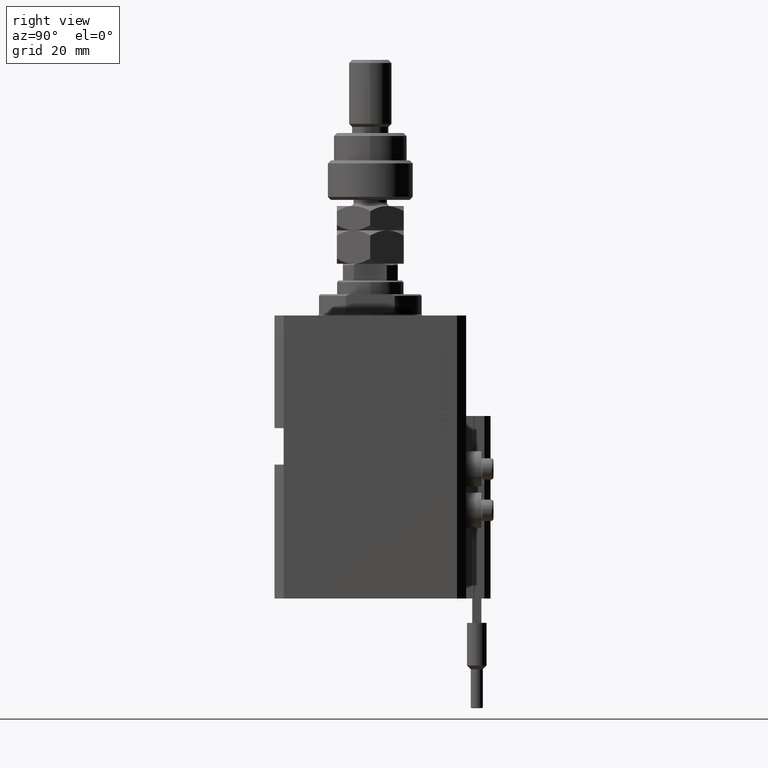
[diagram: clean part render]
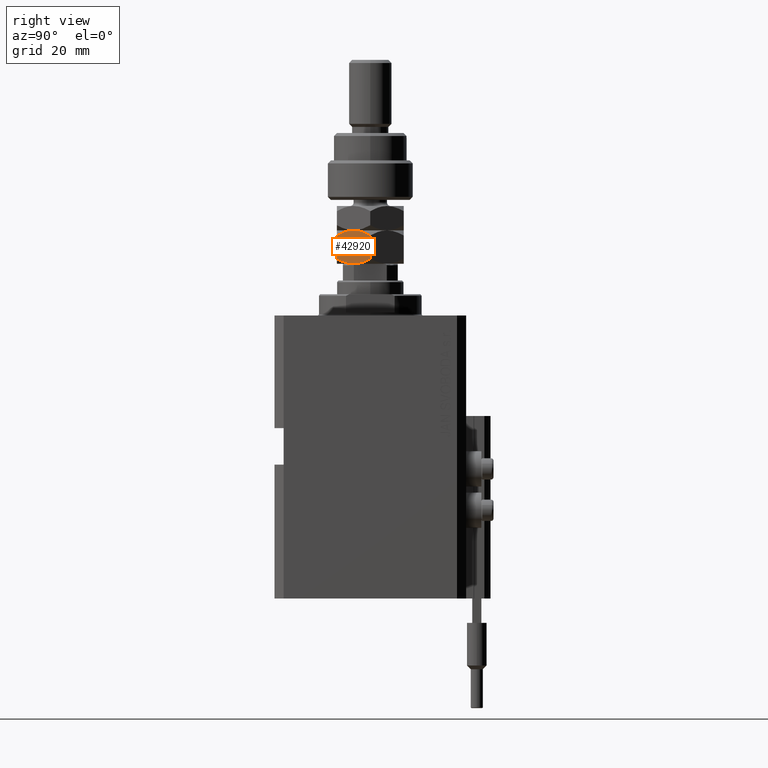
[diagram: same view with one face highlighted and labeled with its STEP entity id]
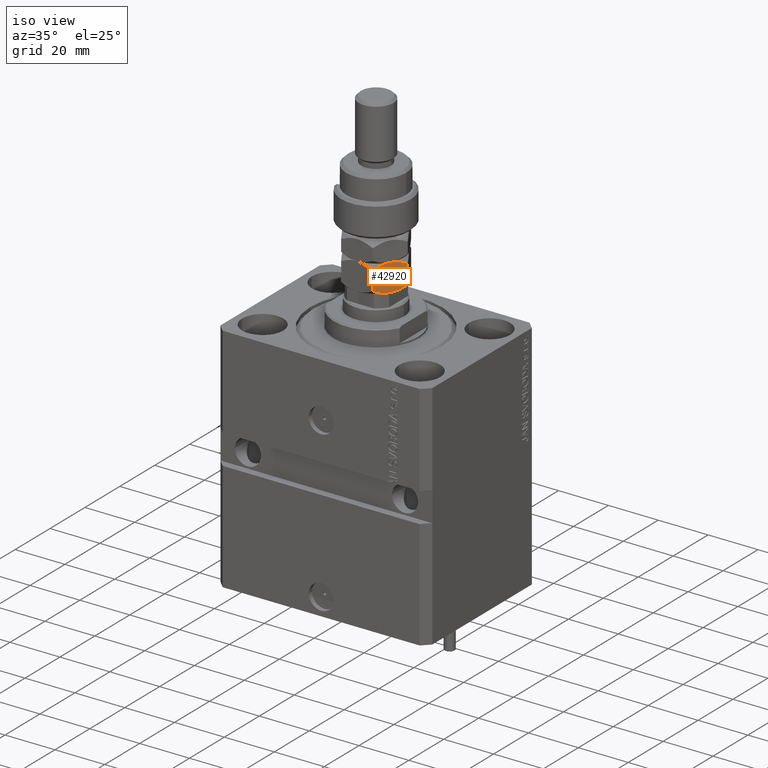
[diagram: same view with one face highlighted and labeled with its STEP entity id]
A machine part, right view. The second image highlights one B-rep face of the part: STEP entity #42920.
A second angle (iso view) of the same face is appended — the face is thin or edge-on in the first view.
In plain terms, the highlighted planar face has unit normal (-0.866, 0.5, 0).
Its self-contained STEP definition (entity closure, byte-faithful):
#69 = CARTESIAN_POINT ( 'NONE',  ( 10.99999999999999822, 0.5501206218979356466, 0.01029861699449337656 ) ) ;
#1605 = CARTESIAN_POINT ( 'NONE',  ( 10.99999999999999822, 5.363576505757325918, 9.791932305492514033 ) ) ;
#1649 = CARTESIAN_POINT ( 'NONE',  ( 10.99999999999999822, -4.323029509133800907, 10.19034626474623551 ) ) ;
#2023 = B_SPLINE_CURVE_WITH_KNOTS ( 'NONE', 3,
 ( #18223, #33994, #17714, #33495, #42028, #6566, #22365, #11708 ),
 .UNSPECIFIED., .F., .F.,
 ( 4, 2, 2, 4 ),
 ( 0.02548310755563731184, 0.02714502201312677179, 0.02880693647061623175, 0.03213076538559515166 ),
 .UNSPECIFIED. ) ;
#2174 = CARTESIAN_POINT ( 'NONE',  ( 10.99999999999999822, -2.205563362884370271, 10.79423439979603039 ) ) ;
#4223 = CARTESIAN_POINT ( 'NONE',  ( 11.00000000000000000, 6.350852961085883486, 1.701705922171761198 ) ) ;
#5708 = VERTEX_POINT ( 'NONE', #21690 ) ;
#6566 = CARTESIAN_POINT ( 'NONE',  ( 11.00000000000000178, -4.344649988696088094, 0.7819333922108973045 ) ) ;
#7167 = VERTEX_POINT ( 'NONE', #45760 ) ;
#8106 = ORIENTED_EDGE ( 'NONE', *, *, #8835, .F. ) ;
#8195 = DIRECTION ( 'NONE',  ( -0.000000000000000000, -0.000000000000000000, -1.000000000000000000 ) ) ;
#8835 = EDGE_CURVE ( 'NONE', #7167, #5708, #2023, .T. ) ;
#8897 = DIRECTION ( 'NONE',  ( 0.000000000000000000, 0.000000000000000000, 1.000000000000000000 ) ) ;
#10843 = EDGE_CURVE ( 'NONE', #32779, #43197, #28921, .T. ) ;
#11708 = CARTESIAN_POINT ( 'NONE',  ( 11.00000000000000000, -6.350852961085885262, 1.701705922171761864 ) ) ;
#11998 = CARTESIAN_POINT ( 'NONE',  ( 11.00000000000000000, 2.205563362884370715, 0.2057656002039678633 ) ) ;
#12059 = ORIENTED_EDGE ( 'NONE', *, *, #10843, .F. ) ;
#12310 = EDGE_CURVE ( 'NONE', #43197, #7167, #17789, .T. ) ;
#12497 = CARTESIAN_POINT ( 'NONE',  ( 11.00000000000000000, 1.102880524211967916, 0.05171427369706949051 ) ) ;
#12757 = B_SPLINE_CURVE_WITH_KNOTS ( 'NONE', 3,
 ( #37073, #48715, #24913, #40190, #16382, #32162, #1605, #47948 ),
 .UNSPECIFIED., .F., .F.,
 ( 4, 2, 2, 4 ),
 ( 0.02548310755563731531, 0.02714502201312677526, 0.02880693647061623522, 0.03213076538559515860 ),
 .UNSPECIFIED. ) ;
#14088 = CARTESIAN_POINT ( 'NONE',  ( 11.00000000000000000, -0.2746235576716405391, 11.00000000000000355 ) ) ;
#15382 = CARTESIAN_POINT ( 'NONE',  ( 11.00000000000000000, 5.349315167928744508, 1.222704691498689877 ) ) ;
#15717 = CARTESIAN_POINT ( 'NONE',  ( 11.00000000000000000, -6.350852961085885262, 11.00000000000000000 ) ) ;
#16382 = CARTESIAN_POINT ( 'NONE',  ( 11.00000000000000000, 2.731989201781026555, 10.67753305448841772 ) ) ;
#17015 = CARTESIAN_POINT ( 'NONE',  ( 11.00000000000000000, 6.350852961085883486, 11.00000000000000000 ) ) ;
#17453 = CARTESIAN_POINT ( 'NONE',  ( 11.00000000000000178, -0.5501206218979368678, 10.98970138300551191 ) ) ;
#17714 = CARTESIAN_POINT ( 'NONE',  ( 11.00000000000000178, -1.099784029505286975, 0.04170177774201815762 ) ) ;
#17789 = B_SPLINE_CURVE_WITH_KNOTS ( 'NONE', 3,
 ( #4223, #35548, #15382, #23908, #39686, #43063, #11998, #47712, #12497, #69, #47202, #44058 ),
 .UNSPECIFIED., .F., .F.,
 ( 4, 2, 2, 2, 2, 4 ),
 ( 0.01886453216956117396, 0.02051917601608021016, 0.02217381986259924290, 0.02382846370911827910, 0.02465578563237779547, 0.02548310755563731184 ),
 .UNSPECIFIED. ) ;
#17964 = FACE_OUTER_BOUND ( 'NONE', #20778, .T. ) ;
#18223 = CARTESIAN_POINT ( 'NONE',  ( 11.00000000000000000, 0.000000000000000000, 0.000000000000000000 ) ) ;
#18912 = CARTESIAN_POINT ( 'NONE',  ( 11.00000000000000000, 6.350852961085883486, 1.701705922171761198 ) ) ;
#20308 = CARTESIAN_POINT ( 'NONE',  ( 11.00000000000000000, 6.350852961085883486, 9.298294077828240134 ) ) ;
#20778 = EDGE_LOOP ( 'NONE', ( #42730, #12059, #31135, #22123, #47317, #8106 ) ) ;
#21690 = CARTESIAN_POINT ( 'NONE',  ( 11.00000000000000000, -6.350852961085885262, 1.701705922171761864 ) ) ;
#22123 = ORIENTED_EDGE ( 'NONE', *, *, #30625, .F. ) ;
#22365 = CARTESIAN_POINT ( 'NONE',  ( 11.00000000000000000, -5.363576505757326807, 1.208067694507484413 ) ) ;
#22372 = CARTESIAN_POINT ( 'NONE',  ( 11.00000000000000000, -1.102880524211969027, 10.94828572630293273 ) ) ;
#22628 = CARTESIAN_POINT ( 'NONE',  ( 11.00000000000000000, -3.802713407336412832, 10.37230892346509847 ) ) ;
#23908 = CARTESIAN_POINT ( 'NONE',  ( 10.99999999999999822, 4.323029509133802684, 0.8096537352537666044 ) ) ;
#24347 = VERTEX_POINT ( 'NONE', #46276 ) ;
#24913 = CARTESIAN_POINT ( 'NONE',  ( 11.00000000000000178, 1.099784029505284533, 10.95829822225798189 ) ) ;
#24914 = VECTOR ( 'NONE', #40310, 1000.000000000000000 ) ;
#25484 = CARTESIAN_POINT ( 'NONE',  ( 10.99999999999999467, 0.000000000000000000, 11.00000000000000000 ) ) ;
#25729 = PLANE ( 'NONE',  #49281 ) ;
#28921 = LINE ( 'NONE', #17015, #24914 ) ;
#29791 = CARTESIAN_POINT ( 'NONE',  ( 11.00000000000000000, -6.350852961085885262, 9.298294077828238358 ) ) ;
#30625 = EDGE_CURVE ( 'NONE', #45669, #24347, #50877, .T. ) ;
#31135 = ORIENTED_EDGE ( 'NONE', *, *, #37441, .F. ) ;
#31494 = LINE ( 'NONE', #15717, #37029 ) ;
#32162 = CARTESIAN_POINT ( 'NONE',  ( 11.00000000000000178, 4.344649988696087206, 10.21806660778910114 ) ) ;
#32779 = VERTEX_POINT ( 'NONE', #20308 ) ;
#33495 = CARTESIAN_POINT ( 'NONE',  ( 10.99999999999999645, -2.189438957741031366, 0.2028253662507153998 ) ) ;
#33501 = CARTESIAN_POINT ( 'NONE',  ( 11.00000000000000178, -5.349315167928747172, 9.777295308501312121 ) ) ;
#33754 = CARTESIAN_POINT ( 'NONE',  ( 10.99999999999999822, -5.856287164594791150, 9.545576976073807174 ) ) ;
#33994 = CARTESIAN_POINT ( 'NONE',  ( 10.99999999999999822, -0.5516605423237674888, 3.811648262644349985E-18 ) ) ;
#34258 = CARTESIAN_POINT ( 'NONE',  ( 11.00000000000000000, -6.350852961085885262, 9.298294077828238358 ) ) ;
#35548 = CARTESIAN_POINT ( 'NONE',  ( 11.00000000000000178, 5.856287164594785821, 1.454423023926191938 ) ) ;
#37029 = VECTOR ( 'NONE', #8195, 1000.000000000000000 ) ;
#37073 = CARTESIAN_POINT ( 'NONE',  ( 10.99999999999999467, 0.000000000000000000, 11.00000000000000000 ) ) ;
#37374 = CARTESIAN_POINT ( 'NONE',  ( 11.00000000000000355, -2.743986917173864892, 10.67427553246086447 ) ) ;
#37441 = EDGE_CURVE ( 'NONE', #24347, #32779, #12757, .T. ) ;
#37623 = CARTESIAN_POINT ( 'NONE',  ( 11.00000000000000000, -6.350852961085885262, 11.00000000000000000 ) ) ;
#39686 = CARTESIAN_POINT ( 'NONE',  ( 11.00000000000000000, 3.802713407336413276, 0.6276910765349043020 ) ) ;
#40190 = CARTESIAN_POINT ( 'NONE',  ( 10.99999999999999822, 2.189438957741029590, 10.79717463374928421 ) ) ;
#40310 = DIRECTION ( 'NONE',  ( -0.000000000000000000, -0.000000000000000000, -1.000000000000000000 ) ) ;
#41504 = DIRECTION ( 'NONE',  ( -1.000000000000000000, 0.000000000000000000, 0.000000000000000000 ) ) ;
#42028 = CARTESIAN_POINT ( 'NONE',  ( 11.00000000000000000, -2.731989201781026111, 0.3224669455115847794 ) ) ;
#42730 = ORIENTED_EDGE ( 'NONE', *, *, #12310, .F. ) ;
#42920 = ADVANCED_FACE ( 'NONE', ( #17964 ), #25729, .F. ) ;
#43063 = CARTESIAN_POINT ( 'NONE',  ( 11.00000000000000000, 2.743986917173864448, 0.3257244675391384736 ) ) ;
#43197 = VERTEX_POINT ( 'NONE', #18912 ) ;
#44058 = CARTESIAN_POINT ( 'NONE',  ( 11.00000000000000000, 0.000000000000000000, 0.000000000000000000 ) ) ;
#45398 = CARTESIAN_POINT ( 'NONE',  ( 11.00000000000000178, -1.381217716854154398, 10.91695300848610017 ) ) ;
#45669 = VERTEX_POINT ( 'NONE', #29791 ) ;
#45760 = CARTESIAN_POINT ( 'NONE',  ( 11.00000000000000000, 0.000000000000000000, 0.000000000000000000 ) ) ;
#46276 = CARTESIAN_POINT ( 'NONE',  ( 10.99999999999999467, 0.000000000000000000, 11.00000000000000000 ) ) ;
#47202 = CARTESIAN_POINT ( 'NONE',  ( 10.99999999999999822, 0.2746235576716393179, 8.470329472542994146E-18 ) ) ;
#47317 = ORIENTED_EDGE ( 'NONE', *, *, #50320, .T. ) ;
#47712 = CARTESIAN_POINT ( 'NONE',  ( 11.00000000000000178, 1.381217716854154398, 0.08304699151390024237 ) ) ;
#47948 = CARTESIAN_POINT ( 'NONE',  ( 11.00000000000000000, 6.350852961085883486, 9.298294077828240134 ) ) ;
#48715 = CARTESIAN_POINT ( 'NONE',  ( 11.00000000000000178, 0.5516605423237666006, 11.00000000000000355 ) ) ;
#49281 = AXIS2_PLACEMENT_3D ( 'NONE', #37623, #41504, #8897 ) ;
#50320 = EDGE_CURVE ( 'NONE', #45669, #5708, #31494, .T. ) ;
#50877 = B_SPLINE_CURVE_WITH_KNOTS ( 'NONE', 3,
 ( #34258, #33754, #33501, #1649, #22628, #37374, #2174, #45398, #22372, #17453, #14088, #25484 ),
 .UNSPECIFIED., .F., .F.,
 ( 4, 2, 2, 2, 2, 4 ),
 ( 0.01886453216956117396, 0.02051917601608021016, 0.02217381986259924637, 0.02382846370911827910, 0.02465578563237779547, 0.02548310755563731531 ),
 .UNSPECIFIED. ) ;